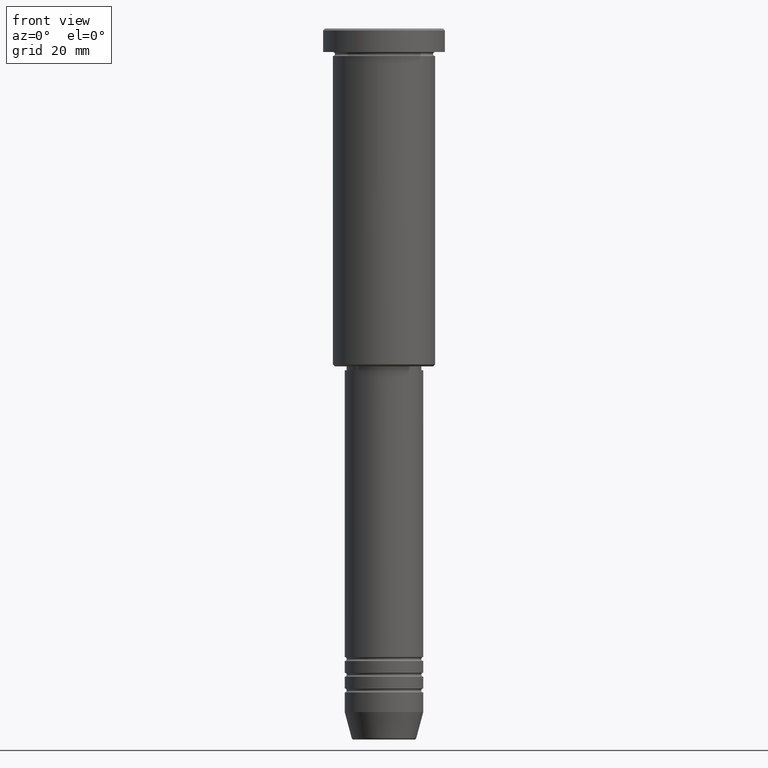
[diagram: clean part render]
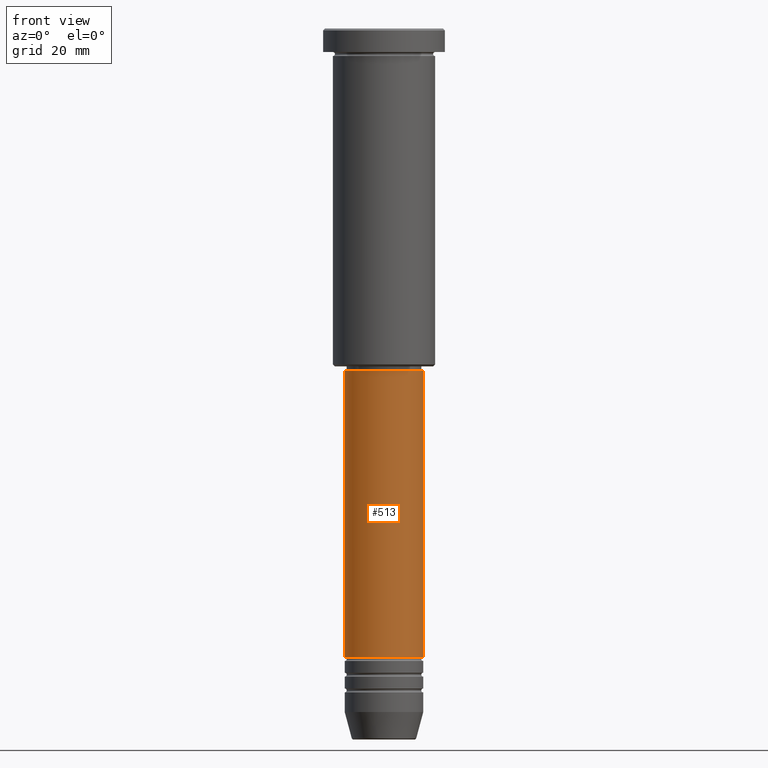
[diagram: same view with one face highlighted and labeled with its STEP entity id]
A machine part, front view. The second image highlights one B-rep face of the part: STEP entity #513.
In plain terms, the highlighted cylindrical surface (partial cylindrical patch) has radius 10 mm, axis along (-0, -0, 1).
Its self-contained STEP definition (entity closure, byte-faithful):
#24 = EDGE_CURVE ( 'NONE', #400, #1063, #609, .T. ) ;
#37 = AXIS2_PLACEMENT_3D ( 'NONE', #1059, #976, #1133 ) ;
#141 = FACE_OUTER_BOUND ( 'NONE', #633, .T. ) ;
#146 = EDGE_CURVE ( 'NONE', #960, #1149, #792, .T. ) ;
#216 = ORIENTED_EDGE ( 'NONE', *, *, #146, .T. ) ;
#236 = DIRECTION ( 'NONE',  ( 1.000000000000000000, 0.000000000000000000, 0.000000000000000000 ) ) ;
#243 = DIRECTION ( 'NONE',  ( -0.000000000000000000, -0.000000000000000000, 1.000000000000000000 ) ) ;
#245 = AXIS2_PLACEMENT_3D ( 'NONE', #578, #745, #943 ) ;
#264 = CARTESIAN_POINT ( 'NONE',  ( 10.00000000000000178, 0.000000000000000000, -159.9999999999998579 ) ) ;
#400 = VERTEX_POINT ( 'NONE', #402 ) ;
#402 = CARTESIAN_POINT ( 'NONE',  ( -10.00000000000000178, 1.224646799147353454E-15, -159.9999999999998579 ) ) ;
#420 = CARTESIAN_POINT ( 'NONE',  ( -10.00000000000000000, 1.224646799147353256E-15, 0.000000000000000000 ) ) ;
#424 = CYLINDRICAL_SURFACE ( 'NONE', #470, 10.00000000000000000 ) ;
#430 = CARTESIAN_POINT ( 'NONE',  ( -9.999999999999998224, 1.224646799147353256E-15, -87.00000000000000000 ) ) ;
#432 = CIRCLE ( 'NONE', #37, 10.00000000000000178 ) ;
#449 = VECTOR ( 'NONE', #795, 1000.000000000000000 ) ;
#470 = AXIS2_PLACEMENT_3D ( 'NONE', #1062, #243, #236 ) ;
#513 = ADVANCED_FACE ( 'NONE', ( #141 ), #424, .T. ) ;
#538 = ORIENTED_EDGE ( 'NONE', *, *, #1068, .F. ) ;
#578 = CARTESIAN_POINT ( 'NONE',  ( 0.000000000000000000, 0.000000000000000000, -87.00000000000000000 ) ) ;
#601 = VECTOR ( 'NONE', #857, 1000.000000000000000 ) ;
#609 = LINE ( 'NONE', #420, #449 ) ;
#633 = EDGE_LOOP ( 'NONE', ( #1036, #1039, #216, #538 ) ) ;
#745 = DIRECTION ( 'NONE',  ( -0.000000000000000000, -0.000000000000000000, 1.000000000000000000 ) ) ;
#776 = CARTESIAN_POINT ( 'NONE',  ( 10.00000000000000000, 0.000000000000000000, 0.000000000000000000 ) ) ;
#792 = LINE ( 'NONE', #776, #601 ) ;
#795 = DIRECTION ( 'NONE',  ( -0.000000000000000000, -0.000000000000000000, 1.000000000000000000 ) ) ;
#857 = DIRECTION ( 'NONE',  ( -0.000000000000000000, -0.000000000000000000, 1.000000000000000000 ) ) ;
#943 = DIRECTION ( 'NONE',  ( 1.000000000000000000, 0.000000000000000000, 0.000000000000000000 ) ) ;
#954 = EDGE_CURVE ( 'NONE', #400, #960, #432, .T. ) ;
#960 = VERTEX_POINT ( 'NONE', #264 ) ;
#976 = DIRECTION ( 'NONE',  ( -0.000000000000000000, -0.000000000000000000, 1.000000000000000000 ) ) ;
#1034 = CARTESIAN_POINT ( 'NONE',  ( 9.999999999999998224, 0.000000000000000000, -87.00000000000000000 ) ) ;
#1036 = ORIENTED_EDGE ( 'NONE', *, *, #24, .F. ) ;
#1039 = ORIENTED_EDGE ( 'NONE', *, *, #954, .T. ) ;
#1059 = CARTESIAN_POINT ( 'NONE',  ( 0.000000000000000000, 0.000000000000000000, -159.9999999999998579 ) ) ;
#1062 = CARTESIAN_POINT ( 'NONE',  ( 0.000000000000000000, 0.000000000000000000, 0.000000000000000000 ) ) ;
#1063 = VERTEX_POINT ( 'NONE', #430 ) ;
#1068 = EDGE_CURVE ( 'NONE', #1063, #1149, #1180, .T. ) ;
#1133 = DIRECTION ( 'NONE',  ( 1.000000000000000000, 0.000000000000000000, 0.000000000000000000 ) ) ;
#1149 = VERTEX_POINT ( 'NONE', #1034 ) ;
#1180 = CIRCLE ( 'NONE', #245, 9.999999999999998224 ) ;